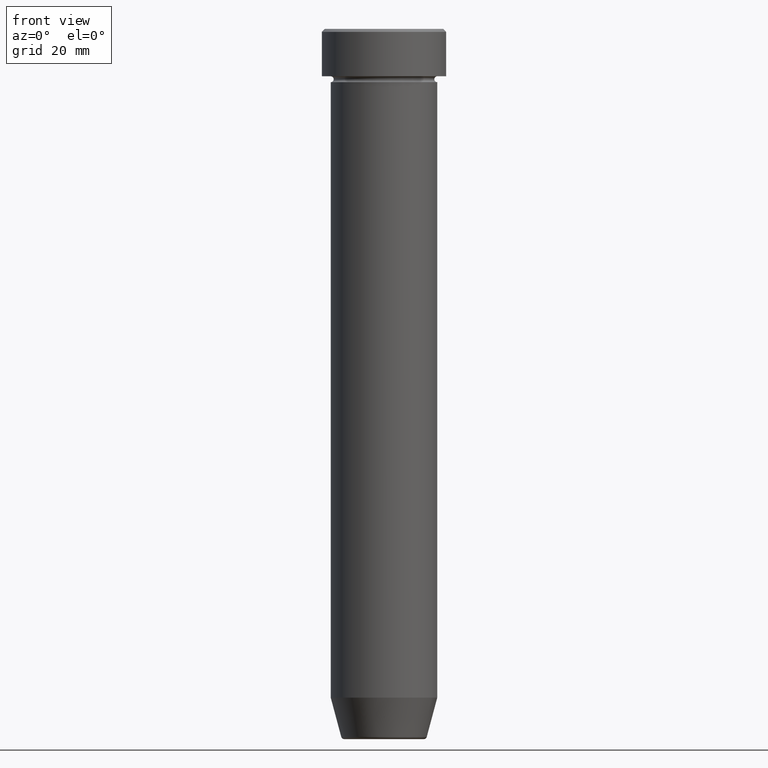
[diagram: clean part render]
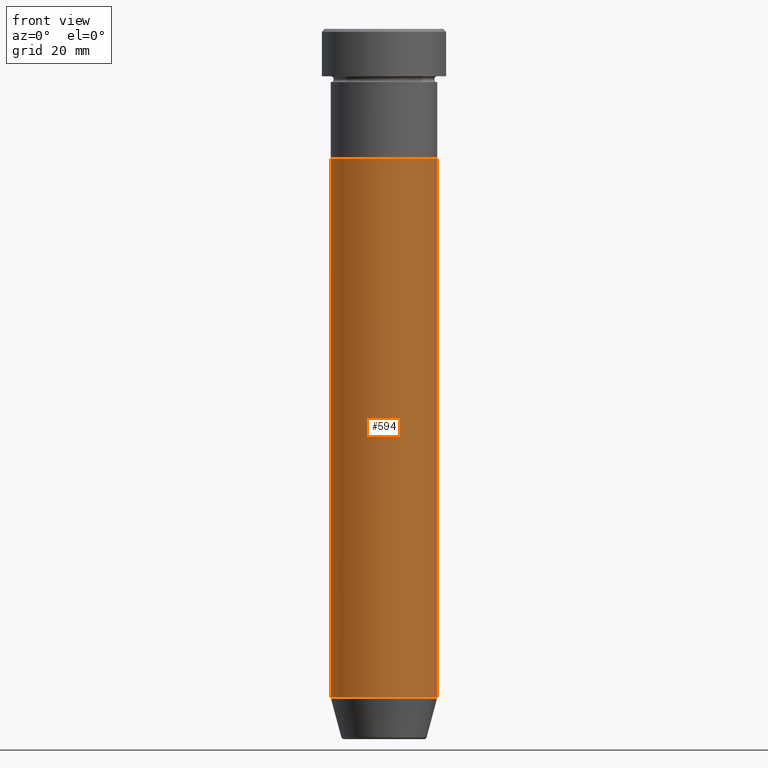
[diagram: same view with one face highlighted and labeled with its STEP entity id]
A machine part, front view. The second image highlights one B-rep face of the part: STEP entity #594.
In plain terms, the highlighted cylindrical surface (partial cylindrical patch) has radius 9 mm, axis along (-0, -0, 1).
Its self-contained STEP definition (entity closure, byte-faithful):
#7 = VERTEX_POINT ( 'NONE', #73 ) ;
#60 = CIRCLE ( 'NONE', #482, 9.000000000000000000 ) ;
#73 = CARTESIAN_POINT ( 'NONE',  ( 9.000000000000000000, 0.000000000000000000, -22.00000000000000000 ) ) ;
#95 = EDGE_CURVE ( 'NONE', #244, #7, #60, .T. ) ;
#96 = DIRECTION ( 'NONE',  ( -0.000000000000000000, -0.000000000000000000, 1.000000000000000000 ) ) ;
#97 = CARTESIAN_POINT ( 'NONE',  ( 0.000000000000000000, 0.000000000000000000, -112.9999999999999858 ) ) ;
#135 = DIRECTION ( 'NONE',  ( 1.000000000000000000, 0.000000000000000000, 0.000000000000000000 ) ) ;
#138 = FACE_OUTER_BOUND ( 'NONE', #478, .T. ) ;
#142 = EDGE_CURVE ( 'NONE', #252, #244, #455, .T. ) ;
#144 = LINE ( 'NONE', #330, #346 ) ;
#174 = DIRECTION ( 'NONE',  ( -0.000000000000000000, -0.000000000000000000, 1.000000000000000000 ) ) ;
#176 = VECTOR ( 'NONE', #174, 1000.000000000000000 ) ;
#235 = AXIS2_PLACEMENT_3D ( 'NONE', #506, #551, #135 ) ;
#244 = VERTEX_POINT ( 'NONE', #293 ) ;
#252 = VERTEX_POINT ( 'NONE', #417 ) ;
#293 = CARTESIAN_POINT ( 'NONE',  ( -9.000000000000000000, 1.102182119232617714E-15, -22.00000000000000000 ) ) ;
#304 = ORIENTED_EDGE ( 'NONE', *, *, #339, .T. ) ;
#330 = CARTESIAN_POINT ( 'NONE',  ( 9.000000000000000000, 0.000000000000000000, 0.000000000000000000 ) ) ;
#339 = EDGE_CURVE ( 'NONE', #252, #562, #383, .T. ) ;
#346 = VECTOR ( 'NONE', #96, 1000.000000000000000 ) ;
#383 = CIRCLE ( 'NONE', #501, 9.000000000000000000 ) ;
#384 = ORIENTED_EDGE ( 'NONE', *, *, #142, .F. ) ;
#389 = ORIENTED_EDGE ( 'NONE', *, *, #95, .F. ) ;
#393 = EDGE_CURVE ( 'NONE', #562, #7, #144, .T. ) ;
#406 = DIRECTION ( 'NONE',  ( -0.000000000000000000, -0.000000000000000000, 1.000000000000000000 ) ) ;
#407 = CARTESIAN_POINT ( 'NONE',  ( -9.000000000000000000, 1.102182119232617714E-15, 0.000000000000000000 ) ) ;
#417 = CARTESIAN_POINT ( 'NONE',  ( -9.000000000000000000, 1.102182119232617714E-15, -112.9999999999999858 ) ) ;
#420 = ORIENTED_EDGE ( 'NONE', *, *, #393, .T. ) ;
#440 = CARTESIAN_POINT ( 'NONE',  ( 9.000000000000000000, 0.000000000000000000, -112.9999999999999858 ) ) ;
#451 = CARTESIAN_POINT ( 'NONE',  ( 0.000000000000000000, 0.000000000000000000, -22.00000000000000000 ) ) ;
#454 = CYLINDRICAL_SURFACE ( 'NONE', #235, 9.000000000000000000 ) ;
#455 = LINE ( 'NONE', #407, #176 ) ;
#469 = DIRECTION ( 'NONE',  ( 1.000000000000000000, 0.000000000000000000, 0.000000000000000000 ) ) ;
#478 = EDGE_LOOP ( 'NONE', ( #384, #304, #420, #389 ) ) ;
#482 = AXIS2_PLACEMENT_3D ( 'NONE', #451, #406, #552 ) ;
#501 = AXIS2_PLACEMENT_3D ( 'NONE', #97, #597, #469 ) ;
#506 = CARTESIAN_POINT ( 'NONE',  ( 0.000000000000000000, 0.000000000000000000, 0.000000000000000000 ) ) ;
#551 = DIRECTION ( 'NONE',  ( -0.000000000000000000, -0.000000000000000000, 1.000000000000000000 ) ) ;
#552 = DIRECTION ( 'NONE',  ( 1.000000000000000000, 0.000000000000000000, 0.000000000000000000 ) ) ;
#562 = VERTEX_POINT ( 'NONE', #440 ) ;
#594 = ADVANCED_FACE ( 'NONE', ( #138 ), #454, .T. ) ;
#597 = DIRECTION ( 'NONE',  ( -0.000000000000000000, -0.000000000000000000, 1.000000000000000000 ) ) ;